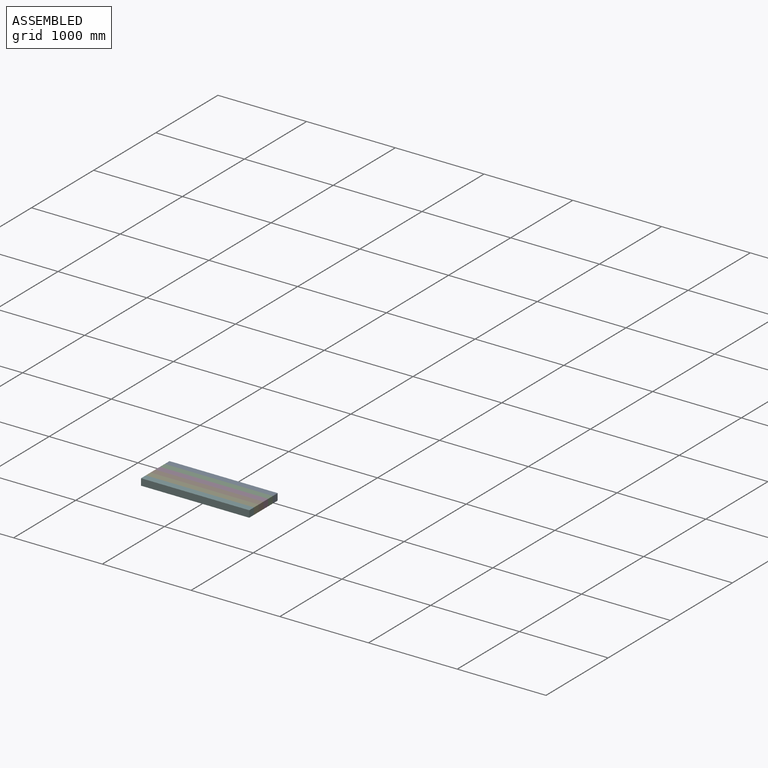
[diagram: assembled view]
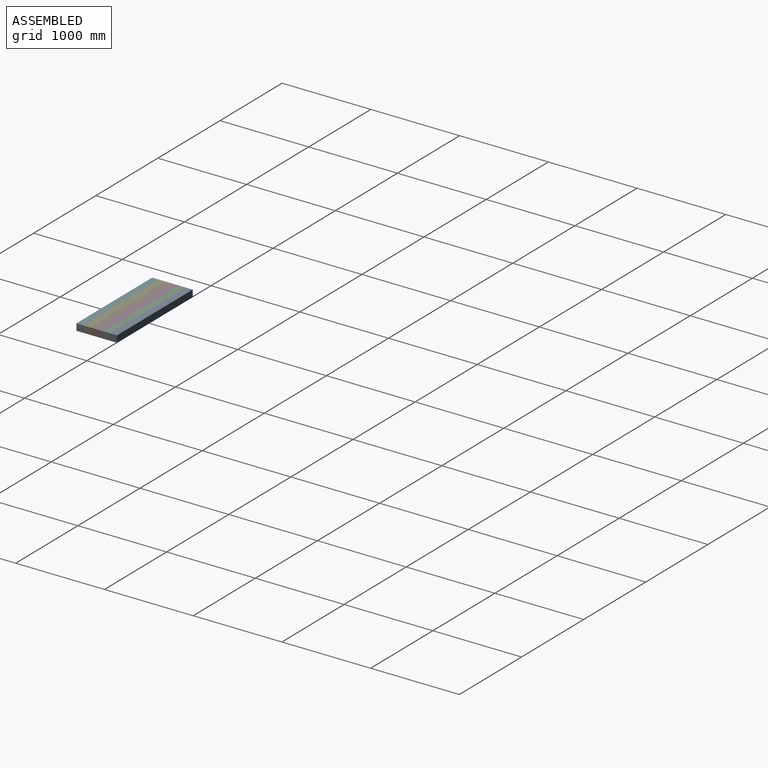
[diagram: assembled view, second angle]
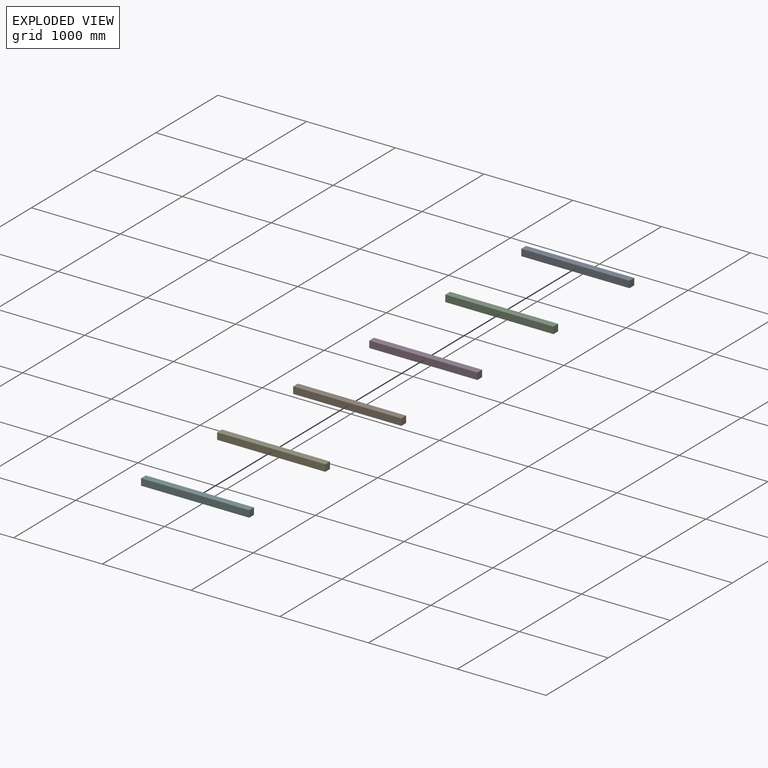
[diagram: exploded view]
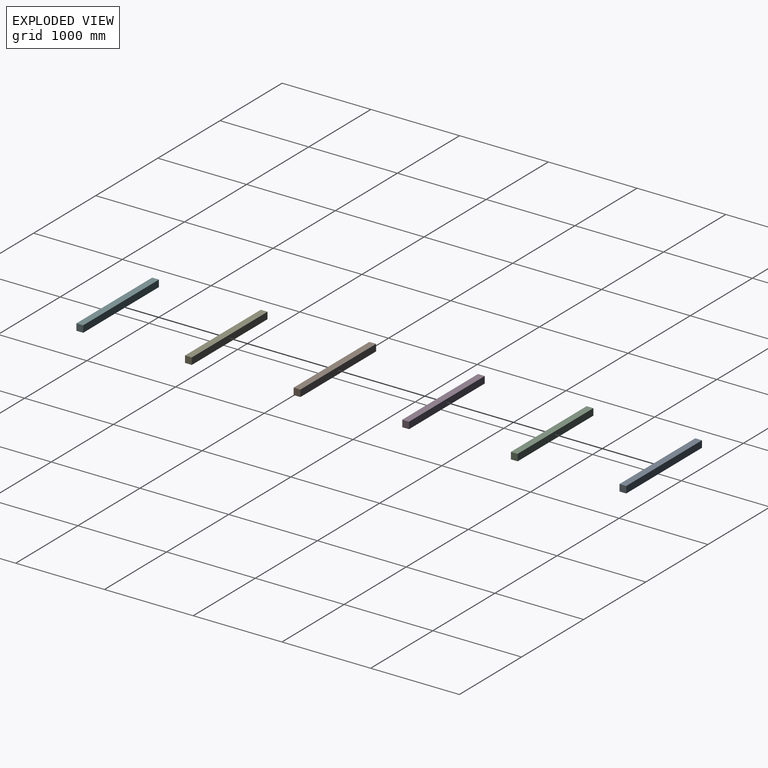
[diagram: exploded view, second angle]
ASSEMBLY  parts=6 mates=5
PART A: 6 faces, bbox 1219.2x76.2x76.2 mm
  f0: plane 1219.2x76.2mm, normal (0,1,0), area 92903mm2, adj f1,f3,f4,f5
  f1: plane 76.2x76.2mm, normal (-1,0,0), area 5806.4mm2, adj f0,f2,f4,f5
  f2: plane 1219.2x76.2mm, normal (0,-1,0), area 92903mm2, adj f1,f3,f4,f5
  f3: plane 76.2x76.2mm, normal (1,0,0), area 5806.4mm2, adj f0,f2,f4,f5
  f4: plane 1219.2x76.2mm, normal (0,0,1), area 92903mm2, adj f0,f1,f2,f3
  f5: plane 1219.2x76.2mm, normal (0,0,-1), area 92903mm2, adj f0,f1,f2,f3
PART B: same geometry as A
PART C: same geometry as A
PART D: same geometry as A
PART E: same geometry as A
PART F: same geometry as A
PLACE A t=(0,45.72,0)mm
PLACE B t=(0,-182.88,0)mm
PLACE C t=(0,-30.48,0)mm
PLACE D t=(0,-106.68,0)mm
PLACE E t=(0,-259.08,0)mm
PLACE F t=(0,-335.28,0)mm
MATE fastened E.f0 <-> B.f2  axis (0,1,0) through (-54.62,-275.58,38.1)mm
MATE fastened D.f0 <-> C.f2  axis (0,1,0) through (-54.62,-123.18,38.1)mm
MATE fastened A.f2 <-> C.f0  axis (0,-1,0) through (-54.62,-46.98,38.1)mm
MATE fastened F.f0 <-> E.f2  axis (0,1,0) through (-54.62,-351.78,38.1)mm
MATE fastened D.f2 <-> B.f0  axis (0,-1,0) through (-54.62,-199.38,38.1)mm
